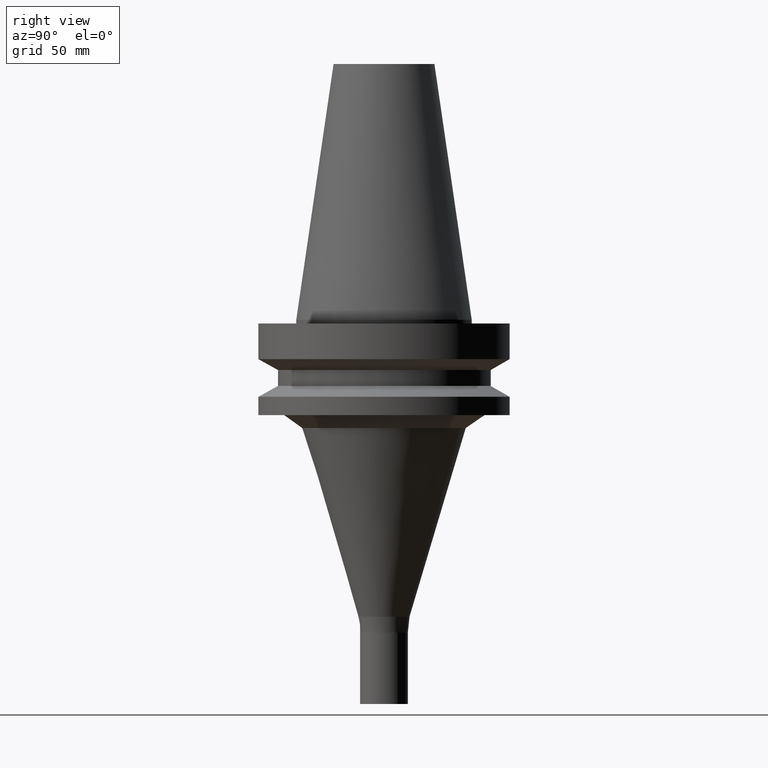
[diagram: clean part render]
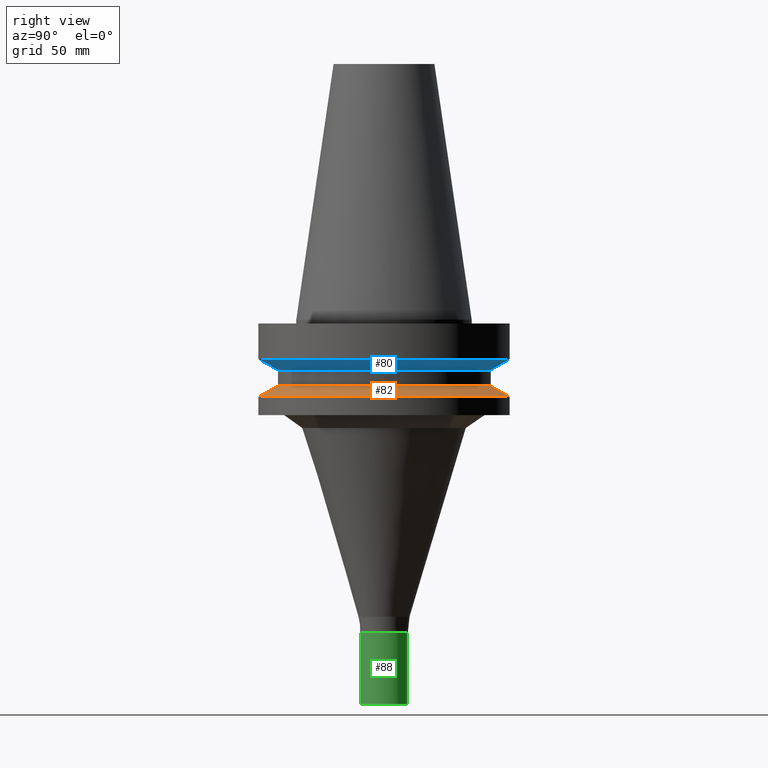
[diagram: same view with three faces highlighted in distinct colors, each labeled with its STEP entity id]
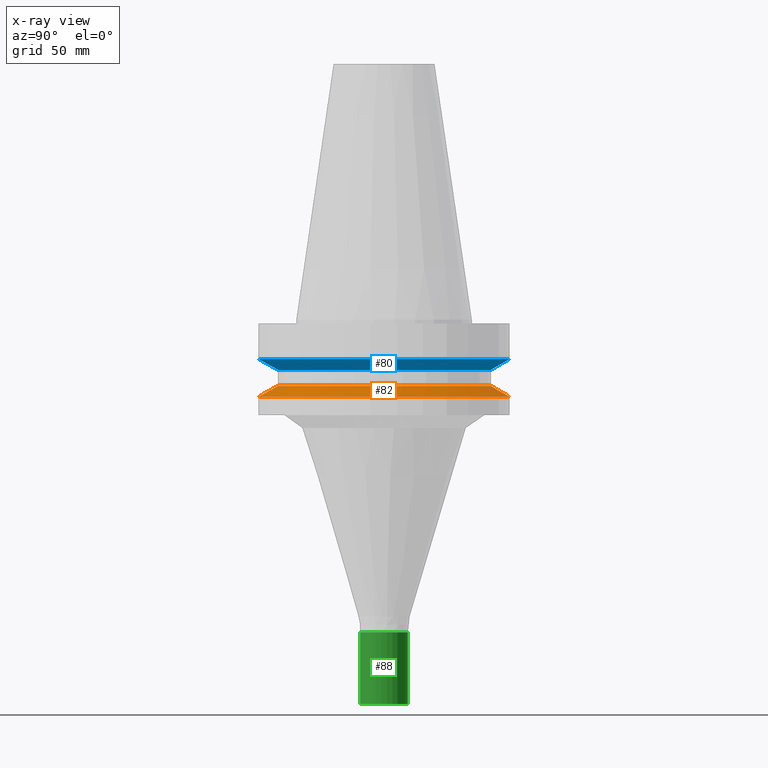
[diagram: x-ray of the same camera — body ghosted, the three highlighted faces saturated]
A machine part, right view with three faces highlighted in distinct colors.
The next image is the same camera in x-ray (body ghosted, the three faces saturated) — at least one of them is partly hidden behind the body in this view.
Their STEP definitions:

[orange] entity #82 — the highlighted conical surface has half-angle 60 deg.
#82=ADVANCED_FACE('',(#111,#112),#113,.T.);
#111=FACE_BOUND('',#154,.T.);
#112=FACE_BOUND('',#155,.T.);
#113=CONICAL_SURFACE('',#156,46.25,1.04719755108882);
#154=EDGE_LOOP('',(#211));
#155=EDGE_LOOP('',(#212));
#156=AXIS2_PLACEMENT_3D('',#213,#214,#215);
#211=ORIENTED_EDGE('',*,*,#257,.F.);
#212=ORIENTED_EDGE('',*,*,#256,.T.);
#213=CARTESIAN_POINT('',(1.74726093181758E-015,3.49452186363515E-015,-28.53493649));
#214=DIRECTION('',(6.12323399573676E-017,1.22464679914735E-016,-1.0));
#215=DIRECTION('',(-1.23259516440783E-032,1.0,1.22464679914735E-016));
#256=EDGE_CURVE('',#276,#276,#277,.T.);
#257=EDGE_CURVE('',#278,#278,#279,.T.);
#276=VERTEX_POINT('',#304);
#277=CIRCLE('',#305,42.5);
#278=VERTEX_POINT('',#306);
#279=CIRCLE('',#307,50.0);
#304=CARTESIAN_POINT('',(1.61468902694396E-015,42.5,-26.36987298));
#305=AXIS2_PLACEMENT_3D('',#338,#339,#340);
#306=CARTESIAN_POINT('',(1.87983283669119E-015,50.0,-30.7));
#307=AXIS2_PLACEMENT_3D('',#341,#342,#343);
#338=CARTESIAN_POINT('',(1.61468902694396E-015,3.22937805388793E-015,-26.36987298));
#339=DIRECTION('',(6.12323399573677E-017,1.22464679914735E-016,-1.0));
#340=DIRECTION('',(-1.23259516440783E-032,1.0,1.22464679914735E-016));
#341=CARTESIAN_POINT('',(1.87983283669119E-015,3.75966567338237E-015,-30.7));
#342=DIRECTION('',(6.12323399573677E-017,1.22464679914735E-016,-1.0));
#343=DIRECTION('',(-1.23259516440783E-032,1.0,1.22464679914735E-016));

[blue] entity #80 — the highlighted conical surface has half-angle 60 deg.
#80=ADVANCED_FACE('',(#105,#106),#107,.T.);
#105=FACE_BOUND('',#148,.T.);
#106=FACE_BOUND('',#149,.T.);
#107=CONICAL_SURFACE('',#150,46.25,1.04719755108882);
#148=EDGE_LOOP('',(#201));
#149=EDGE_LOOP('',(#202));
#150=AXIS2_PLACEMENT_3D('',#203,#204,#205);
#201=ORIENTED_EDGE('',*,*,#255,.F.);
#202=ORIENTED_EDGE('',*,*,#254,.T.);
#203=CARTESIAN_POINT('',(1.09391964220428E-015,2.18783928440857E-015,-17.86506351));
#204=DIRECTION('',(-6.12323399573676E-017,-1.22464679914735E-016,1.0));
#205=DIRECTION('',(-1.23259516440783E-032,1.0,1.22464679914735E-016));
#254=EDGE_CURVE('',#272,#272,#273,.T.);
#255=EDGE_CURVE('',#274,#274,#275,.T.);
#272=VERTEX_POINT('',#300);
#273=CIRCLE('',#301,50.0);
#274=VERTEX_POINT('',#302);
#275=CIRCLE('',#303,42.5);
#300=CARTESIAN_POINT('',(9.61347737330672E-016,50.0,-15.7));
#301=AXIS2_PLACEMENT_3D('',#332,#333,#334);
#302=CARTESIAN_POINT('',(1.2264915470779E-015,42.5,-20.03012702));
#303=AXIS2_PLACEMENT_3D('',#335,#336,#337);
#332=CARTESIAN_POINT('',(9.61347737330672E-016,1.92269547466134E-015,-15.7));
#333=DIRECTION('',(6.12323399573677E-017,1.22464679914735E-016,-1.0));
#334=DIRECTION('',(-1.23259516440783E-032,1.0,1.22464679914735E-016));
#335=CARTESIAN_POINT('',(1.2264915470779E-015,2.45298309415579E-015,-20.03012702));
#336=DIRECTION('',(6.12323399573677E-017,1.22464679914735E-016,-1.0));
#337=DIRECTION('',(-1.23259516440783E-032,1.0,1.22464679914735E-016));

[green] entity #88 — the highlighted cylindrical surface (bore or boss wall) has radius 9.5 mm, axis along (-0, -0, 1).
#88=ADVANCED_FACE('',(#129,#130),#131,.T.);
#129=FACE_BOUND('',#172,.T.);
#130=FACE_BOUND('',#173,.T.);
#131=CYLINDRICAL_SURFACE('',#174,9.5);
#172=EDGE_LOOP('',(#241));
#173=EDGE_LOOP('',(#242));
#174=AXIS2_PLACEMENT_3D('',#243,#244,#245);
#241=ORIENTED_EDGE('',*,*,#263,.F.);
#242=ORIENTED_EDGE('',*,*,#262,.T.);
#243=CARTESIAN_POINT('',(8.49773241354439E-015,1.69954648270888E-014,-138.778502005));
#244=DIRECTION('',(-6.12323399573677E-017,-1.22464679914735E-016,1.0));
#245=DIRECTION('',(-1.23259516440783E-032,1.0,1.22464679914735E-016));
#262=EDGE_CURVE('',#288,#288,#289,.T.);
#263=EDGE_CURVE('',#290,#290,#291,.T.);
#288=VERTEX_POINT('',#316);
#289=CIRCLE('',#317,9.5);
#290=VERTEX_POINT('',#318);
#291=CIRCLE('',#319,9.5);
#316=CARTESIAN_POINT('',(7.62691681361153E-015,9.50000000000002,-124.55700401));
#317=AXIS2_PLACEMENT_3D('',#356,#357,#358);
#318=CARTESIAN_POINT('',(9.36854801347725E-015,9.50000000000002,-153.0));
#319=AXIS2_PLACEMENT_3D('',#359,#360,#361);
#356=CARTESIAN_POINT('',(7.62691681361153E-015,1.5253833627223E-014,-124.55700401));
#357=DIRECTION('',(6.12323399573677E-017,1.22464679914735E-016,-1.0));
#358=DIRECTION('',(-1.23259516440783E-032,1.0,1.22464679914735E-016));
#359=CARTESIAN_POINT('',(9.36854801347725E-015,1.87370960269545E-014,-153.0));
#360=DIRECTION('',(6.12323399573677E-017,1.22464679914735E-016,-1.0));
#361=DIRECTION('',(-1.23259516440783E-032,1.0,1.22464679914735E-016));